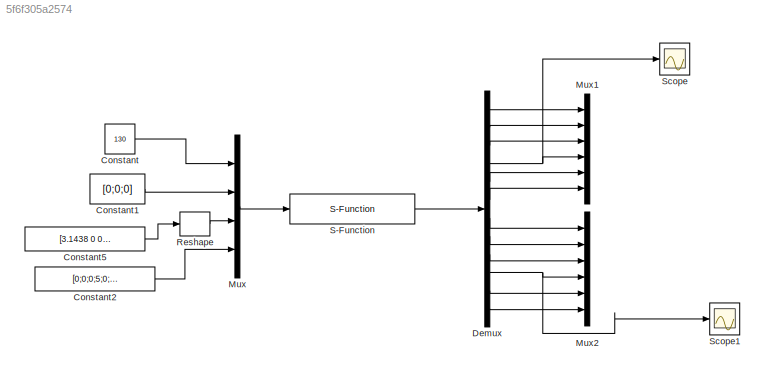
MODEL slx_5f6f305a2574
KIND model
BLOCK [Constant] Constant
  Value = 130
BLOCK [Constant] Constant1
  Value = [0;0;0]
BLOCK [Constant] Constant2
  Value = [0;0;0;5;0;0]
  VectorParams1D = off
BLOCK [Constant] Constant5
  Value = [3.1438 0 0;0 6.1021 0;0 0 6.9572]
  VectorParams1D = off
BLOCK [Demux] Demux
  DisplayOption = bar
  Outputs = 12
  Ports = [1, 12]
BLOCK [Mux] Mux
  DisplayOption = bar
  Ports = [4, 1]
BLOCK [Mux] Mux1
  DisplayOption = bar
  Inputs = 6
  Ports = [6, 1]
BLOCK [Mux] Mux2
  DisplayOption = bar
  Inputs = 6
  Ports = [6, 1]
BLOCK [Reshape] Reshape
  Ports = [1, 1]
BLOCK [S-Function] S-Function
  EnableBusSupport = off
  FunctionName = Decoupled_Dynamics
  Ports = [1, 1]
BLOCK [Scope] Scope
  DataFormat = StructureWithTime
  Floating = off
  NumInputPorts = 1
  Ports = [1]
  SampleTime = 0
  ShowLegends = off
BLOCK [Scope] Scope1
  DataFormat = StructureWithTime
  Floating = off
  NumInputPorts = 1
  Ports = [1]
  SampleTime = 0
  SaveName = ScopeData1
  ShowLegends = off
LINE Constant1:1 -> Mux:2
LINE Constant2:1 -> Mux:4
LINE Constant5:1 -> Reshape:1
LINE Constant:1 -> Mux:1
LINE Demux:1 -> Mux1:1
NET Demux:10 -> Mux2:4, Scope1:1
LINE Demux:11 -> Mux2:5
LINE Demux:12 -> Mux2:6
LINE Demux:2 -> Mux1:2
LINE Demux:3 -> Mux1:3
NET Demux:4 -> Mux1:4, Scope:1
LINE Demux:5 -> Mux1:5
LINE Demux:6 -> Mux1:6
LINE Demux:7 -> Mux2:1
LINE Demux:8 -> Mux2:2
LINE Demux:9 -> Mux2:3
LINE Mux:1 -> S-Function:1
LINE Reshape:1 -> Mux:3
LINE S-Function:1 -> Demux:1
note: NET lines group one-source signal fan-out (src -> all destinations, sorted); 1:1 wires keep LINE
